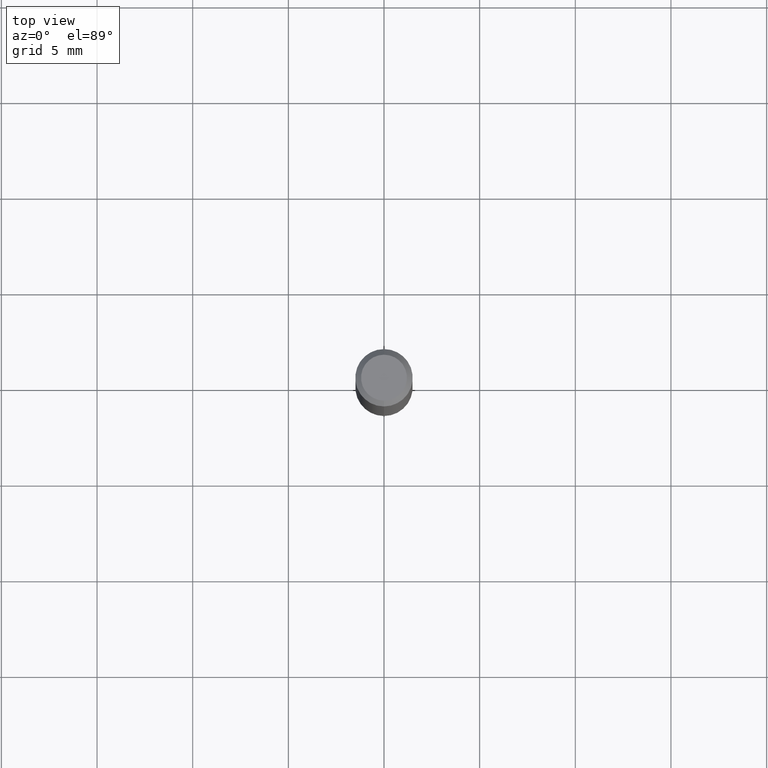
[diagram: clean part render]
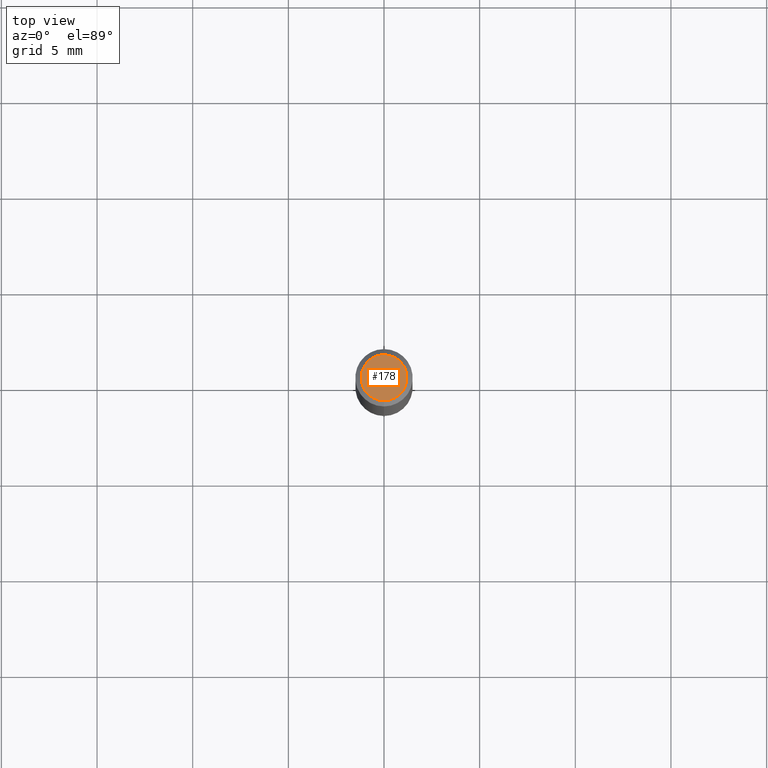
[diagram: same view with one face highlighted and labeled with its STEP entity id]
A machine part, top view. The second image highlights one B-rep face of the part: STEP entity #178.
In plain terms, the highlighted planar face has unit normal (-0, 0, 1).
Its self-contained STEP definition (entity closure, byte-faithful):
#112=VERTEX_POINT('',#289);
#140=EDGE_CURVE('',#164,#112,#321,.T.);
#164=VERTEX_POINT('',#346);
#178=ADVANCED_FACE('',(#362),#363,.T.);
#254=EDGE_CURVE('',#112,#164,#448,.T.);
#289=CARTESIAN_POINT('',(0.0,1.2,0.0));
#321=CIRCLE('',#523,1.2);
#346=CARTESIAN_POINT('',(1.46952762458685E-016,-1.2,0.0));
#362=FACE_OUTER_BOUND('',#572,.T.);
#363=PLANE('',#573);
#448=CIRCLE('',#683,1.2);
#523=AXIS2_PLACEMENT_3D('',#757,#758,#759);
#572=EDGE_LOOP('',(#803,#804));
#573=AXIS2_PLACEMENT_3D('',#805,#806,#807);
#683=AXIS2_PLACEMENT_3D('',#899,#900,#901);
#757=CARTESIAN_POINT('',(0.0,0.0,0.0));
#758=DIRECTION('',(0.0,0.0,-1.0));
#759=DIRECTION('',(0.0,1.0,0.0));
#803=ORIENTED_EDGE('',*,*,#254,.F.);
#804=ORIENTED_EDGE('',*,*,#140,.F.);
#805=CARTESIAN_POINT('',(0.0,0.6,0.0));
#806=DIRECTION('',(-0.0,0.0,1.0));
#807=DIRECTION('',(0.0,-1.0,0.0));
#899=CARTESIAN_POINT('',(0.0,0.0,0.0));
#900=DIRECTION('',(0.0,0.0,-1.0));
#901=DIRECTION('',(0.0,1.0,0.0));